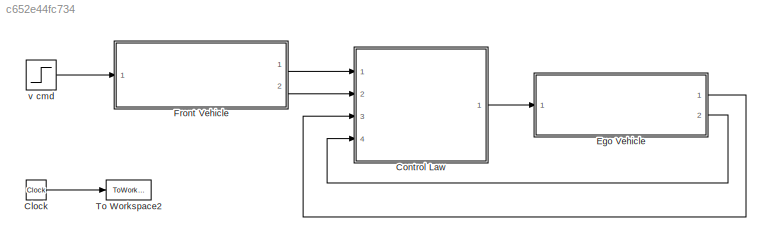
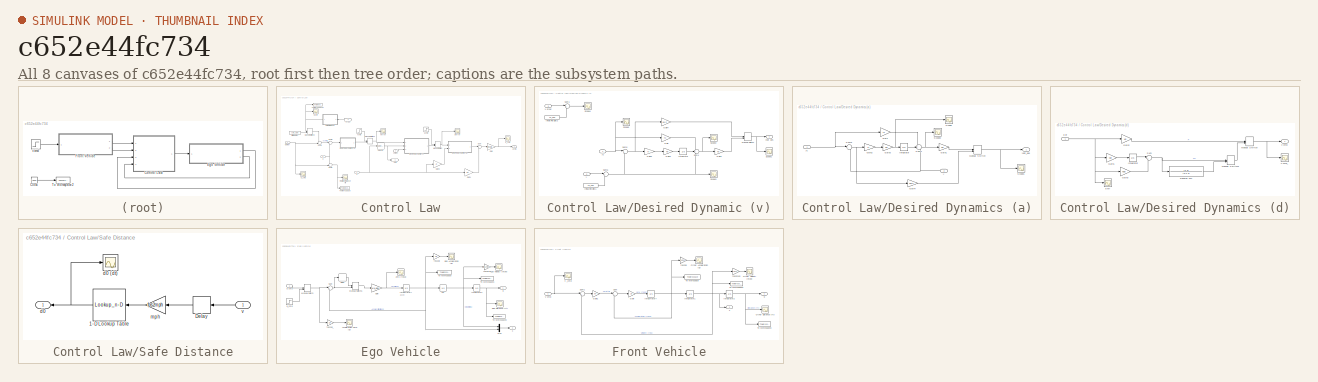
[diagram: thumbnail index - all 8 canvases of the model, root first then tree order]
MODEL slx_c652e44fc734
KIND model
CONFIG AbsTol = auto
CONFIG EnableMultiTasking = off
CONFIG FixedStep = dt
CONFIG MaxStep = auto
CONFIG MinStep = auto
CONFIG RelTol = 1e-3
CONFIG SampleTimeConstraint = Unconstrained
CONFIG Solver = FixedStepAuto
CONFIG SolverName = FixedStepAuto
CONFIG StartTime = 0.0
CONFIG StopTime = 15
BLOCK [Clock] Clock
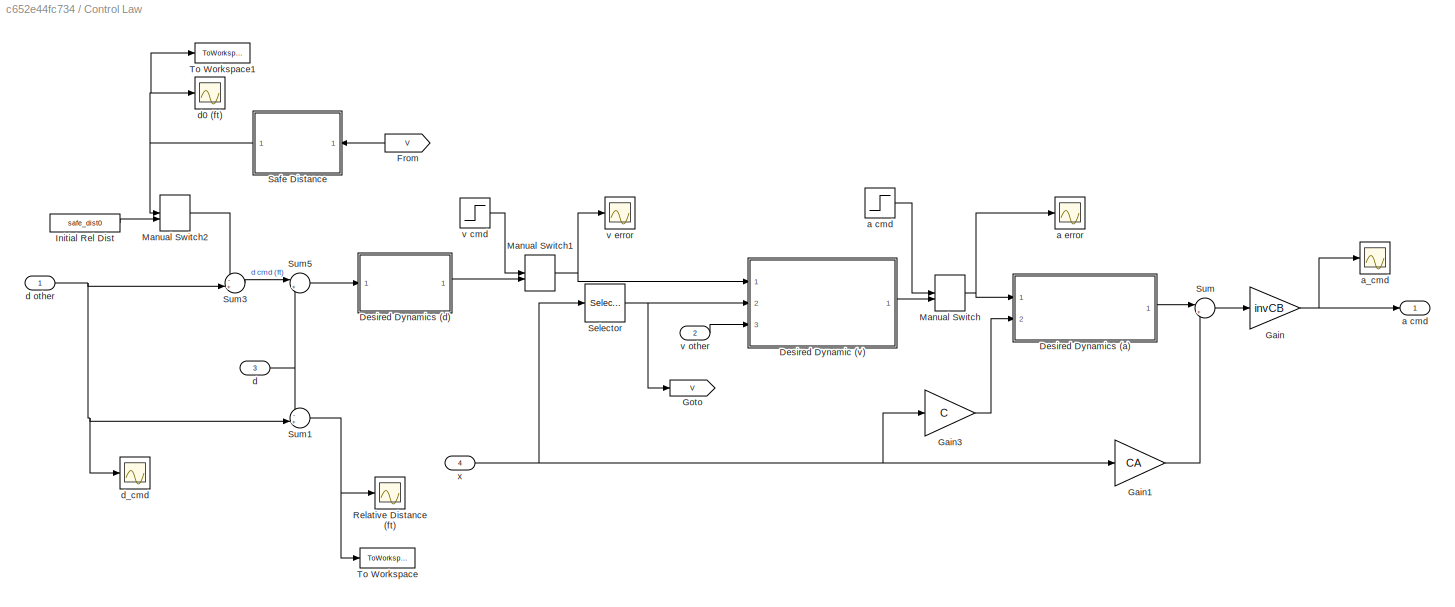
BLOCK [SubSystem] Control Law
  Ports = [4, 1]
  RequestExecContextInheritance = off
BLOCK [SubSystem] Control Law/Desired Dynamic (v)
  Ports = [3, 1]
  RequestExecContextInheritance = off
BLOCK [Gain] Control Law/Desired Dynamic (v)/Gain
  Gain = fc
  OutDataTypeStr = Inherit: Inherit via internal rule
  ParamDataTypeStr = Inherit: Inherit via internal rule
  SaturateOnIntegerOverflow = off
BLOCK [Gain] Control Law/Desired Dynamic (v)/Gain1
  Gain = Kv
  OutDataTypeStr = Inherit: Inherit via internal rule
  ParamDataTypeStr = Inherit: Inherit via internal rule
  SaturateOnIntegerOverflow = off
BLOCK [Gain] Control Law/Desired Dynamic (v)/Gain2
  Gain = fi
  OutDataTypeStr = Inherit: Inherit via internal rule
  ParamDataTypeStr = Inherit: Inherit via internal rule
  SaturateOnIntegerOverflow = off
BLOCK [Gain] Control Law/Desired Dynamic (v)/Gain3
  Gain = Kv
  OutDataTypeStr = Inherit: Inherit via internal rule
  ParamDataTypeStr = Inherit: Inherit via internal rule
  SaturateOnIntegerOverflow = off
BLOCK [Gain] Control Law/Desired Dynamic (v)/Gain4
  Gain = Kv/2
  OutDataTypeStr = Inherit: Inherit via internal rule
  ParamDataTypeStr = Inherit: Inherit via internal rule
  SaturateOnIntegerOverflow = off
BLOCK [Constant] Control Law/Desired Dynamic (v)/Initial Rel Dist1
  Value = v0_ego
BLOCK [Constant] Control Law/Desired Dynamic (v)/Initial Rel Dist2
  Value = v0_ego
BLOCK [Integrator] Control Law/Desired Dynamic (v)/Integrator
  Ports = [1, 1]
BLOCK [ManualSwitch] Control Law/Desired Dynamic (v)/Manual Switch
BLOCK [Scope] Control Law/Desired Dynamic (v)/Scope1
  Floating = off
  NumInputPorts = 1
  Ports = [1]
  ScopeSpecificationString = Simulink.scopes.TimeScopeBlockCfg('CurrentConfiguration', extmgr.ConfigurationSet(extmgr.Configuration('Core','General UI',true),extmgr.Configuration('Core','Source UI',true),extmgr.Configuration('Sources','WiredSimulink',true,'DataLoggingVariableName','ScopeData4'),extmgr.Configuration('Visuals','Time Domain',true,'SerializedDisplays',{struct('MinYLimReal','2.62966','MaxYLimReal','28.1884','YLabe...<+1418ch>
BLOCK [Scope] Control Law/Desired Dynamic (v)/Scope2
  Floating = off
  NumInputPorts = 1
  Ports = [1]
  ScopeSpecificationString = Simulink.scopes.TimeScopeBlockCfg('CurrentConfiguration', extmgr.ConfigurationSet(extmgr.Configuration('Core','General UI',true),extmgr.Configuration('Core','Source UI',true),extmgr.Configuration('Sources','WiredSimulink',true,'DataLoggingVariableName','ScopeData5'),extmgr.Configuration('Visuals','Time Domain',true,'SerializedDisplays',{struct('MinYLimReal','-19.89025','MaxYLimReal','2.21436','YLa...<+1422ch>
BLOCK [Scope] Control Law/Desired Dynamic (v)/Scope3
  Floating = off
  NumInputPorts = 1
  Ports = [1]
  ScopeSpecificationString = Simulink.scopes.TimeScopeBlockCfg('CurrentConfiguration', extmgr.ConfigurationSet(extmgr.Configuration('Core','General UI',true),extmgr.Configuration('Core','Source UI',true),extmgr.Configuration('Sources','WiredSimulink',true,'DataLoggingVariableName','ScopeData6'),extmgr.Configuration('Visuals','Time Domain',true,'SerializedDisplays',{struct('MinYLimReal','-57.87358','MaxYLimReal','6.4304','YLab...<+1413ch>
BLOCK [Scope] Control Law/Desired Dynamic (v)/Scope4
  Floating = off
  NumInputPorts = 1
  Ports = [1]
  ScopeSpecificationString = Simulink.scopes.TimeScopeBlockCfg('CurrentConfiguration', extmgr.ConfigurationSet(extmgr.Configuration('Core','General UI',true),extmgr.Configuration('Core','Source UI',true),extmgr.Configuration('Sources','WiredSimulink',true,'DataLoggingVariableName','ScopeData3'),extmgr.Configuration('Visuals','Time Domain',true,'SerializedDisplays',{struct('MinYLimReal','-74.40634','MaxYLimReal','8.26737','YLa...<+1415ch>
BLOCK [Scope] Control Law/Desired Dynamic (v)/Scope5
  Floating = off
  NumInputPorts = 1
  Ports = [1]
  ScopeSpecificationString = Simulink.scopes.TimeScopeBlockCfg('CurrentConfiguration', extmgr.ConfigurationSet(extmgr.Configuration('Core','General UI',true),extmgr.Configuration('Core','Source UI',true),extmgr.Configuration('Sources','WiredSimulink',true,'DataLoggingVariableName','ScopeData9'),extmgr.Configuration('Visuals','Time Domain',true,'SerializedDisplays',{struct('MinYLimReal','-74.41539','MaxYLimReal','8.26838','YLa...<+1413ch>
BLOCK [Sum] Control Law/Desired Dynamic (v)/Sum1
  IconShape = round
  InputSameDT = off
  Inputs = |+-
  OutDataTypeStr = Inherit: Inherit via internal rule
  Ports = [2, 1]
  SaturateOnIntegerOverflow = off
BLOCK [Sum] Control Law/Desired Dynamic (v)/Sum4
  IconShape = round
  InputSameDT = off
  Inputs = ++-
  OutDataTypeStr = Inherit: Inherit via internal rule
  Ports = [3, 1]
  SaturateOnIntegerOverflow = off
BLOCK [Sum] Control Law/Desired Dynamic (v)/Sum5
  IconShape = round
  InputSameDT = off
  Inputs = |+-
  OutDataTypeStr = Inherit: Inherit via internal rule
  Ports = [2, 1]
  SaturateOnIntegerOverflow = off
BLOCK [Sum] Control Law/Desired Dynamic (v)/Sum6
  IconShape = round
  InputSameDT = off
  Inputs = |+-
  OutDataTypeStr = Inherit: Inherit via internal rule
  Ports = [2, 1]
  SaturateOnIntegerOverflow = off
BLOCK [Inport] Control Law/Desired Dynamic (v)/v other
  IconDisplay = Port number
  Port = 3
BLOCK [Inport] Control Law/Desired Dynamic (v)/y 
  IconDisplay = Port number
  Port = 2
BLOCK [Inport] Control Law/Desired Dynamic (v)/yc
  IconDisplay = Port number
BLOCK [Outport] Control Law/Desired Dynamic (v)/ydot des
  IconDisplay = Port number
BLOCK [SubSystem] Control Law/Desired Dynamics (a)
  Ports = [2, 1]
  RequestExecContextInheritance = off
BLOCK [Gain] Control Law/Desired Dynamics (a)/Gain
  Gain = fc
  OutDataTypeStr = Inherit: Inherit via internal rule
  ParamDataTypeStr = Inherit: Inherit via internal rule
  SaturateOnIntegerOverflow = off
BLOCK [Gain] Control Law/Desired Dynamics (a)/Gain1
  Gain = Ka
  OutDataTypeStr = Inherit: Inherit via internal rule
  ParamDataTypeStr = Inherit: Inherit via internal rule
  SaturateOnIntegerOverflow = off
BLOCK [Gain] Control Law/Desired Dynamics (a)/Gain2
  Gain = fi
  OutDataTypeStr = Inherit: Inherit via internal rule
  ParamDataTypeStr = Inherit: Inherit via internal rule
  SaturateOnIntegerOverflow = off
BLOCK [Gain] Control Law/Desired Dynamics (a)/Gain3
  Gain = Ka
  OutDataTypeStr = Inherit: Inherit via internal rule
  ParamDataTypeStr = Inherit: Inherit via internal rule
  SaturateOnIntegerOverflow = off
BLOCK [Gain] Control Law/Desired Dynamics (a)/Gain4
  Gain = Ka/2
  OutDataTypeStr = Inherit: Inherit via internal rule
  ParamDataTypeStr = Inherit: Inherit via internal rule
  SaturateOnIntegerOverflow = off
BLOCK [Integrator] Control Law/Desired Dynamics (a)/Integrator
  Ports = [1, 1]
BLOCK [ManualSwitch] Control Law/Desired Dynamics (a)/Manual Switch
  CurrentSetting = 0
BLOCK [Scope] Control Law/Desired Dynamics (a)/Scope
  Floating = off
  NumInputPorts = 1
  Ports = [1]
  ScopeSpecificationString = Simulink.scopes.TimeScopeBlockCfg('CurrentConfiguration', extmgr.ConfigurationSet(extmgr.Configuration('Core','General UI',true),extmgr.Configuration('Core','Source UI',true),extmgr.Configuration('Sources','WiredSimulink',true,'DataLoggingVariableName','ScopeData6'),extmgr.Configuration('Visuals','Time Domain',true,'SerializedDisplays',{struct('MinYLimReal','-20.88606','MaxYLimReal','10.48562','YL...<+1425ch>
BLOCK [Scope] Control Law/Desired Dynamics (a)/Scope1
  Floating = off
  NumInputPorts = 1
  Ports = [1]
  ScopeSpecificationString = Simulink.scopes.TimeScopeBlockCfg('CurrentConfiguration', extmgr.ConfigurationSet(extmgr.Configuration('Core','General UI',true),extmgr.Configuration('Core','Source UI',true),extmgr.Configuration('Sources','WiredSimulink',true,'DataLoggingVariableName','ScopeData8'),extmgr.Configuration('Visuals','Time Domain',true,'SerializedDisplays',{struct('MinYLimReal','-41.77213','MaxYLimReal','20.97124','YL...<+1433ch>
BLOCK [Scope] Control Law/Desired Dynamics (a)/Scope2
  Floating = off
  NumInputPorts = 1
  Ports = [1]
  ScopeSpecificationString = Simulink.scopes.TimeScopeBlockCfg('CurrentConfiguration', extmgr.ConfigurationSet(extmgr.Configuration('Core','General UI',true),extmgr.Configuration('Core','Source UI',true),extmgr.Configuration('Sources','WiredSimulink',true,'DataLoggingVariableName','ScopeData9'),extmgr.Configuration('Visuals','Time Domain',true,'SerializedDisplays',{struct('MinYLimReal','-5.22152','MaxYLimReal','2.62141','YLab...<+1418ch>
BLOCK [Sum] Control Law/Desired Dynamics (a)/Sum4
  IconShape = round
  InputSameDT = off
  Inputs = ++-
  OutDataTypeStr = Inherit: Inherit via internal rule
  Ports = [3, 1]
  SaturateOnIntegerOverflow = off
BLOCK [Sum] Control Law/Desired Dynamics (a)/Sum5
  IconShape = round
  InputSameDT = off
  Inputs = |+-
  OutDataTypeStr = Inherit: Inherit via internal rule
  Ports = [2, 1]
  SaturateOnIntegerOverflow = off
BLOCK [Inport] Control Law/Desired Dynamics (a)/y
  IconDisplay = Port number
  Port = 2
BLOCK [Inport] Control Law/Desired Dynamics (a)/yc
  IconDisplay = Port number
BLOCK [Outport] Control Law/Desired Dynamics (a)/ydot_des
  IconDisplay = Port number
BLOCK [SubSystem] Control Law/Desired Dynamics (d)
  Ports = [1, 1]
  RequestExecContextInheritance = off
BLOCK [Gain] Control Law/Desired Dynamics (d)/Gain1
  Gain = Kdi
  OutDataTypeStr = Inherit: Inherit via internal rule
  ParamDataTypeStr = Inherit: Inherit via internal rule
  SaturateOnIntegerOverflow = off
BLOCK [Gain] Control Law/Desired Dynamics (d)/Gain2
  Gain = Kd
  OutDataTypeStr = Inherit: Inherit via internal rule
  ParamDataTypeStr = Inherit: Inherit via internal rule
  SaturateOnIntegerOverflow = off
BLOCK [Gain] Control Law/Desired Dynamics (d)/Gain3
  Gain = Kdp
  OutDataTypeStr = Inherit: Inherit via internal rule
  ParamDataTypeStr = Inherit: Inherit via internal rule
  SaturateOnIntegerOverflow = off
BLOCK [Integrator] Control Law/Desired Dynamics (d)/Integrator
  Ports = [1, 1]
BLOCK [ManualSwitch] Control Law/Desired Dynamics (d)/Manual Switch
  CurrentSetting = 0
BLOCK [ManualSwitch] Control Law/Desired Dynamics (d)/Manual Switch1
  CurrentSetting = 0
BLOCK [Sum] Control Law/Desired Dynamics (d)/Sum
  IconShape = round
  InputSameDT = off
  Inputs = |++
  OutDataTypeStr = Inherit: Inherit via internal rule
  Ports = [2, 1]
  SaturateOnIntegerOverflow = off
BLOCK [TransferFcn] Control Law/Desired Dynamics (d)/Transfer Fcn
  Denominator = [1/4 1]
  Numerator = [1 1]
BLOCK [Inport] Control Law/Desired Dynamics (d)/d er
  IconDisplay = Port number
BLOCK [Scope] Control Law/Desired Dynamics (d)/d err 
  Floating = off
  NumInputPorts = 1
  Ports = [1]
  ScopeSpecificationString = Simulink.scopes.TimeScopeBlockCfg('CurrentConfiguration', extmgr.ConfigurationSet(extmgr.Configuration('Core','General UI',true),extmgr.Configuration('Core','Source UI',true),extmgr.Configuration('Sources','WiredSimulink',true,'DataLoggingVariableName','ScopeData8'),extmgr.Configuration('Visuals','Time Domain',true,'SerializedDisplays',{struct('MinYLimReal','-1289.52365','MaxYLimReal','143.28041',...<+1431ch>
BLOCK [Outport] Control Law/Desired Dynamics (d)/v cmd
  IconDisplay = Port number
BLOCK [Scope] Control Law/Desired Dynamics (d)/v cmd_
  Floating = off
  NumInputPorts = 1
  Ports = [1]
  ScopeSpecificationString = Simulink.scopes.TimeScopeBlockCfg('CurrentConfiguration', extmgr.ConfigurationSet(extmgr.Configuration('Core','General UI',true),extmgr.Configuration('Core','Source UI',true),extmgr.Configuration('Sources','WiredSimulink',true,'DataLoggingVariableName','ScopeData7'),extmgr.Configuration('Visuals','Time Domain',true,'SerializedDisplays',{struct('MinYLimReal','-60.66699','MaxYLimReal','6.74078','YLa...<+1424ch>
BLOCK [From] Control Law/From
  GotoTag = V
BLOCK [Gain] Control Law/Gain
  Gain = invCB
  Multiplication = Matrix(K*u)
  OutDataTypeStr = Inherit: Inherit via internal rule
  ParamDataTypeStr = Inherit: Inherit via internal rule
  SaturateOnIntegerOverflow = off
BLOCK [Gain] Control Law/Gain1
  Gain = CA
  Multiplication = Matrix(K*u)
  OutDataTypeStr = Inherit: Inherit via internal rule
  ParamDataTypeStr = Inherit: Inherit via internal rule
  SaturateOnIntegerOverflow = off
BLOCK [Gain] Control Law/Gain3
  Gain = C
  Multiplication = Matrix(K*u)
  OutDataTypeStr = Inherit: Inherit via internal rule
  ParamDataTypeStr = Inherit: Inherit via internal rule
  SaturateOnIntegerOverflow = off
BLOCK [Goto] Control Law/Goto
  GotoTag = V
BLOCK [Constant] Control Law/Initial Rel Dist
  Value = safe_dist0
BLOCK [ManualSwitch] Control Law/Manual Switch
  CurrentSetting = 0
BLOCK [ManualSwitch] Control Law/Manual Switch1
  CurrentSetting = 0
BLOCK [ManualSwitch] Control Law/Manual Switch2
BLOCK [Scope] Control Law/Relative Distance (ft)
  Floating = off
  NumInputPorts = 1
  Ports = [1]
  ScopeSpecificationString = Simulink.scopes.TimeScopeBlockCfg('CurrentConfiguration', extmgr.ConfigurationSet(extmgr.Configuration('Core','General UI',true),extmgr.Configuration('Core','Source UI',true),extmgr.Configuration('Sources','WiredSimulink',true,'DataLoggingVariableName','ScopeData1'),extmgr.Configuration('Visuals','Time Domain',true,'SerializedDisplays',{struct('MinYLimReal','13.84466','MaxYLimReal','67.35059','YLa...<+1443ch>
BLOCK [SubSystem] Control Law/Safe Distance
  Ports = [1, 1]
  RequestExecContextInheritance = off
BLOCK [Lookup_n-D] Control Law/Safe Distance/1-D Lookup Table
  BreakpointsForDimension1 = v_in
  InternalRulePriority = Speed
  NumberOfTableDimensions = 1
  Ports = [1, 1]
  RndMeth = Simplest
  Table = safe_dist_out
BLOCK [Delay] Control Law/Safe Distance/Delay
  DelayLength = 1
  InitialCondition = v0_ego
  InputPortMap = u0
  Ports = [1, 1]
BLOCK [Outport] Control Law/Safe Distance/d0
  IconDisplay = Port number
BLOCK [Scope] Control Law/Safe Distance/d0 (dt)
  Floating = off
  NumInputPorts = 1
  Ports = [1]
  ScopeSpecificationString = Simulink.scopes.TimeScopeBlockCfg('CurrentConfiguration', extmgr.ConfigurationSet(extmgr.Configuration('Core','General UI',true),extmgr.Configuration('Core','Source UI',true),extmgr.Configuration('Sources','WiredSimulink',true,'DataLoggingVariableName','ScopeData2'),extmgr.Configuration('Visuals','Time Domain',true,'SerializedDisplays',{struct('MinYLimReal','14.73637','MaxYLimReal','67.25151','YLa...<+1436ch>
BLOCK [Gain] Control Law/Safe Distance/mph
  Gain = fps2mph
  OutDataTypeStr = Inherit: Inherit via internal rule
  ParamDataTypeStr = Inherit: Inherit via internal rule
  SaturateOnIntegerOverflow = off
BLOCK [Inport] Control Law/Safe Distance/v
  IconDisplay = Port number
BLOCK [Selector] Control Law/Selector
  IndexOptions = Index vector (dialog)
  Indices = 1
  InputPortWidth = 2
  OutputSizes = 1
  Ports = [1, 1]
BLOCK [Sum] Control Law/Sum
  IconShape = round
  InputSameDT = off
  Inputs = |+-
  OutDataTypeStr = Inherit: Inherit via internal rule
  Ports = [2, 1]
  SaturateOnIntegerOverflow = off
BLOCK [Sum] Control Law/Sum1
  IconShape = round
  InputSameDT = off
  Inputs = -+|
  OutDataTypeStr = Inherit: Inherit via internal rule
  Ports = [2, 1]
  SaturateOnIntegerOverflow = off
BLOCK [Sum] Control Law/Sum3
  IconShape = round
  InputSameDT = off
  Inputs = -+|
  OutDataTypeStr = Inherit: Inherit via internal rule
  Ports = [2, 1]
  SaturateOnIntegerOverflow = off
BLOCK [Sum] Control Law/Sum5
  IconShape = round
  InputSameDT = off
  Inputs = |+-
  OutDataTypeStr = Inherit: Inherit via internal rule
  Ports = [2, 1]
  SaturateOnIntegerOverflow = off
BLOCK [ToWorkspace] Control Law/To Workspace
  FixptAsFi = on
  MaxDataPoints = inf
  Ports = [1]
  SampleTime = -1
  Save2DSignal = 3-D array (concatenate along third dimension)
  VariableName = rel_dist
BLOCK [ToWorkspace] Control Law/To Workspace1
  FixptAsFi = on
  MaxDataPoints = inf
  Ports = [1]
  SampleTime = -1
  Save2DSignal = 3-D array (concatenate along third dimension)
  VariableName = safe_dist
BLOCK [Outport] Control Law/a cmd
  IconDisplay = Port number
BLOCK [Step] Control Law/a cmd 
  After = 0.6*32.2
  SampleTime = 0
BLOCK [Scope] Control Law/a error
  Floating = off
  NumInputPorts = 1
  Ports = [1]
  ScopeSpecificationString = Simulink.scopes.TimeScopeBlockCfg('CurrentConfiguration', extmgr.ConfigurationSet(extmgr.Configuration('Core','General UI',true),extmgr.Configuration('Core','Source UI',true),extmgr.Configuration('Sources','WiredSimulink',true,'DataLoggingVariableName','ScopeData4'),extmgr.Configuration('Visuals','Time Domain',true,'SerializedDisplays',{struct('MinYLimReal','-31.7722','MaxYLimReal','3.53721','YLab...<+1402ch>
BLOCK [Scope] Control Law/a_cmd
  Floating = off
  NumInputPorts = 1
  Ports = [1]
  ScopeSpecificationString = Simulink.scopes.TimeScopeBlockCfg('CurrentConfiguration', extmgr.ConfigurationSet(extmgr.Configuration('Core','General UI',true),extmgr.Configuration('Core','Source UI',true),extmgr.Configuration('Sources','WiredSimulink',true,'DataLoggingVariableName','ScopeData2'),extmgr.Configuration('Visuals','Time Domain',true,'SerializedDisplays',{struct('MinYLimReal','-1.01669','MaxYLimReal','9.14845','YLab...<+1412ch>
BLOCK [Inport] Control Law/d
  IconDisplay = Port number
  Port = 3
BLOCK [Inport] Control Law/d other
  IconDisplay = Port number
BLOCK [Scope] Control Law/d0 (ft)
  Floating = off
  NumInputPorts = 1
  Ports = [1]
  ScopeSpecificationString = Simulink.scopes.TimeScopeBlockCfg('CurrentConfiguration', extmgr.ConfigurationSet(extmgr.Configuration('Core','General UI',true),extmgr.Configuration('Core','Source UI',true),extmgr.Configuration('Sources','WiredSimulink',true,'DataLoggingVariableName','ScopeData1'),extmgr.Configuration('Visuals','Time Domain',true,'SerializedDisplays',{struct('MinYLimReal','14.73637','MaxYLimReal','67.25151','YLa...<+1433ch>
BLOCK [Scope] Control Law/d_cmd
  Floating = off
  NumInputPorts = 1
  Ports = [1]
  ScopeSpecificationString = Simulink.scopes.TimeScopeBlockCfg('CurrentConfiguration', extmgr.ConfigurationSet(extmgr.Configuration('Core','General UI',true),extmgr.Configuration('Core','Source UI',true),extmgr.Configuration('Sources','WiredSimulink',true,'DataLoggingVariableName','ScopeData14'),extmgr.Configuration('Visuals','Time Domain',true,'SerializedDisplays',{struct('MinYLimReal','16.98415','MaxYLimReal','467.14263','Y...<+1407ch>
BLOCK [Step] Control Law/v cmd
  After = 10*mph2fps
  SampleTime = 0
BLOCK [Scope] Control Law/v error
  Floating = off
  NumInputPorts = 1
  Ports = [1]
  ScopeSpecificationString = Simulink.scopes.TimeScopeBlockCfg('CurrentConfiguration', extmgr.ConfigurationSet(extmgr.Configuration('Core','General UI',true),extmgr.Configuration('Core','Source UI',true),extmgr.Configuration('Sources','WiredSimulink',true,'DataLoggingVariableName','ScopeData3'),extmgr.Configuration('Visuals','Time Domain',true,'SerializedDisplays',{struct('MinYLimReal','-115.79889','MaxYLimReal','12.86654','Y...<+1415ch>
BLOCK [Inport] Control Law/v other
  IconDisplay = Port number
  Port = 2
BLOCK [Inport] Control Law/x
  IconDisplay = Port number
  Port = 4
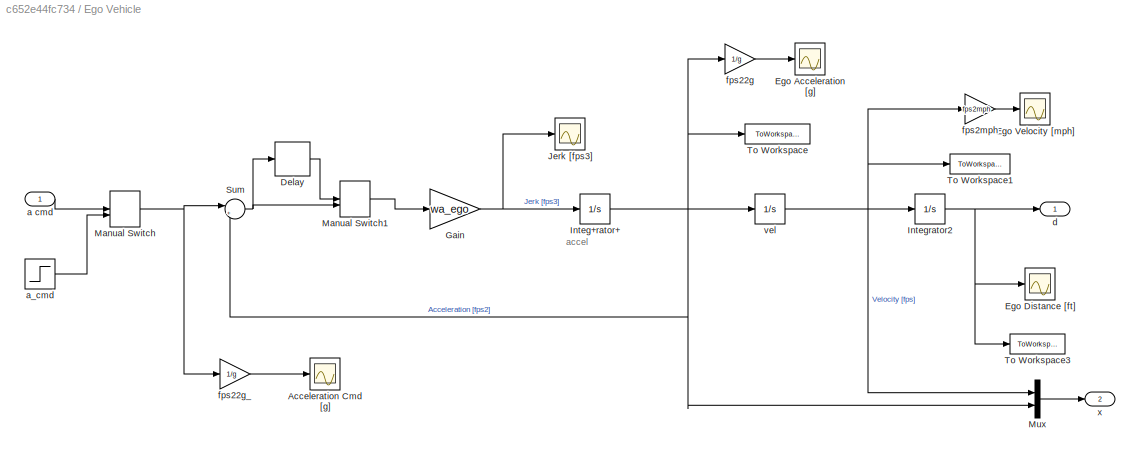
BLOCK [SubSystem] Ego Vehicle
  Ports = [1, 2]
  RequestExecContextInheritance = off
BLOCK [Scope] Ego Vehicle/Acceleration Cmd [g]
  Floating = off
  NumInputPorts = 1
  Ports = [1]
  ScopeSpecificationString = Simulink.scopes.TimeScopeBlockCfg('CurrentConfiguration', extmgr.ConfigurationSet(extmgr.Configuration('Core','General UI',true),extmgr.Configuration('Core','Source UI',true),extmgr.Configuration('Sources','WiredSimulink',true,'DataLoggingVariableName','ScopeData1'),extmgr.Configuration('Visuals','Time Domain',true,'SerializedDisplays',{struct('MinYLimReal','-0.02084','MaxYLimReal','0.1876','YLabe...<+1391ch>
BLOCK [Delay] Ego Vehicle/Delay
  DelayLength = 10
  InputPortMap = u0
  Ports = [1, 1]
BLOCK [Scope] Ego Vehicle/Ego Acceleration [g]
  Floating = off
  NumInputPorts = 1
  Ports = [1]
  ScopeSpecificationString = Simulink.scopes.TimeScopeBlockCfg('CurrentConfiguration', extmgr.ConfigurationSet(extmgr.Configuration('Core','General UI',true),extmgr.Configuration('Core','Source UI',true),extmgr.Configuration('Sources','WiredSimulink',true,'DataLoggingVariableName','ScopeData2'),extmgr.Configuration('Visuals','Time Domain',true,'SerializedDisplays',{struct('MinYLimReal','-1.02281','MaxYLimReal','0.11386','YLab...<+1440ch>
BLOCK [Scope] Ego Vehicle/Ego Distance [ft]
  Floating = off
  NumInputPorts = 1
  Ports = [1]
  ScopeSpecificationString = Simulink.scopes.TimeScopeBlockCfg('CurrentConfiguration', extmgr.ConfigurationSet(extmgr.Configuration('Core','General UI',true),extmgr.Configuration('Core','Source UI',true),extmgr.Configuration('Sources','WiredSimulink',true),extmgr.Configuration('Visuals','Time Domain',true,'SerializedDisplays',{struct('MinYLimReal','-66.15','MaxYLimReal','595.35','YLabelReal','','MinYLimMag','0.00000','MaxYLim...<+1353ch>
BLOCK [Scope] Ego Vehicle/Ego Velocity [mph]
  Floating = off
  NumInputPorts = 1
  Ports = [1]
  ScopeSpecificationString = Simulink.scopes.TimeScopeBlockCfg('CurrentConfiguration', extmgr.ConfigurationSet(extmgr.Configuration('Core','General UI',true),extmgr.Configuration('Core','Source UI',true),extmgr.Configuration('Sources','WiredSimulink',true,'DataLoggingVariableName','ScopeData1'),extmgr.Configuration('Visuals','Time Domain',true,'SerializedDisplays',{struct('MinYLimReal','-8.77272','MaxYLimReal','78.75252','YLa...<+1445ch>
BLOCK [Gain] Ego Vehicle/Gain
  Gain = wa_ego
  OutDataTypeStr = Inherit: Inherit via internal rule
  ParamDataTypeStr = Inherit: Inherit via internal rule
  SaturateOnIntegerOverflow = off
BLOCK [Integrator] Ego Vehicle/Integ+rator+
  LimitOutput = on
  LowerSaturationLimit = min_accel
  Ports = [1, 1]
  UpperSaturationLimit = max_accel
BLOCK [Integrator] Ego Vehicle/Integrator2
  InitialCondition = d0_ego
  Ports = [1, 1]
BLOCK [Scope] Ego Vehicle/Jerk [fps3]
  Floating = off
  NumInputPorts = 1
  Ports = [1]
  ScopeSpecificationString = Simulink.scopes.TimeScopeBlockCfg('CurrentConfiguration', extmgr.ConfigurationSet(extmgr.Configuration('Core','General UI',true),extmgr.Configuration('Core','Source UI',true),extmgr.Configuration('Sources','WiredSimulink',true,'DataLoggingVariableName','ScopeData7'),extmgr.Configuration('Visuals','Time Domain',true,'SerializedDisplays',{struct('MinYLimReal','-16.37419','MaxYLimReal','16.09416','YL...<+1451ch>
BLOCK [ManualSwitch] Ego Vehicle/Manual Switch
BLOCK [ManualSwitch] Ego Vehicle/Manual Switch1
  CurrentSetting = 0
BLOCK [Mux] Ego Vehicle/Mux
  DisplayOption = bar
  Inputs = 2
  Ports = [2, 1]
BLOCK [Sum] Ego Vehicle/Sum
  IconShape = round
  InputSameDT = off
  Inputs = |+-
  OutDataTypeStr = Inherit: Inherit via internal rule
  Ports = [2, 1]
  SaturateOnIntegerOverflow = off
BLOCK [ToWorkspace] Ego Vehicle/To Workspace
  FixptAsFi = on
  MaxDataPoints = inf
  Ports = [1]
  SampleTime = -1
  Save2DSignal = 3-D array (concatenate along third dimension)
  VariableName = accel_ego
BLOCK [ToWorkspace] Ego Vehicle/To Workspace1
  FixptAsFi = on
  MaxDataPoints = inf
  Ports = [1]
  SampleTime = -1
  Save2DSignal = 3-D array (concatenate along third dimension)
  VariableName = vel_ego
BLOCK [ToWorkspace] Ego Vehicle/To Workspace3
  FixptAsFi = on
  MaxDataPoints = inf
  Ports = [1]
  SampleTime = -1
  Save2DSignal = 3-D array (concatenate along third dimension)
  VariableName = dist_ego
BLOCK [Inport] Ego Vehicle/a cmd
  IconDisplay = Port number
BLOCK [Step] Ego Vehicle/a_cmd
  SampleTime = 0
BLOCK [Outport] Ego Vehicle/d
  IconDisplay = Port number
BLOCK [Gain] Ego Vehicle/fps22g
  Gain = 1/g
  OutDataTypeStr = Inherit: Inherit via internal rule
  ParamDataTypeStr = Inherit: Inherit via internal rule
  SaturateOnIntegerOverflow = off
BLOCK [Gain] Ego Vehicle/fps22g_
  Gain = 1/g
  OutDataTypeStr = Inherit: Inherit via internal rule
  ParamDataTypeStr = Inherit: Inherit via internal rule
  SaturateOnIntegerOverflow = off
BLOCK [Gain] Ego Vehicle/fps2mph
  Gain = fps2mph
  OutDataTypeStr = Inherit: Inherit via internal rule
  ParamDataTypeStr = Inherit: Inherit via internal rule
  SaturateOnIntegerOverflow = off
BLOCK [Integrator] Ego Vehicle/vel
  InitialCondition = v0_ego
  Ports = [1, 1]
BLOCK [Outport] Ego Vehicle/x
  IconDisplay = Port number
  Port = 2
BLOCK [SubSystem] Front Vehicle
  Ports = [1, 2]
  RequestExecContextInheritance = off
BLOCK [Gain] Front Vehicle/Gain
  Gain = 1.6
  OutDataTypeStr = Inherit: Inherit via internal rule
  ParamDataTypeStr = Inherit: Inherit via internal rule
  SaturateOnIntegerOverflow = off
BLOCK [Gain] Front Vehicle/Gain1
  Gain = 0.4
  OutDataTypeStr = Inherit: Inherit via internal rule
  ParamDataTypeStr = Inherit: Inherit via internal rule
  SaturateOnIntegerOverflow = off
BLOCK [Integrator] Front Vehicle/Integ+rator+
  LimitOutput = on
  LowerSaturationLimit = min_accel
  Ports = [1, 1]
  UpperSaturationLimit = max_accel
BLOCK [Integrator] Front Vehicle/Integrator1
  InitialCondition = v0_other
  Ports = [1, 1]
BLOCK [Integrator] Front Vehicle/Integrator2
  InitialCondition = d0_other
  Ports = [1, 1]
BLOCK [Scope] Front Vehicle/Other Acceleration [g]
  Floating = off
  NumInputPorts = 1
  Ports = [1]
  ScopeSpecificationString = Simulink.scopes.TimeScopeBlockCfg('CurrentConfiguration', extmgr.ConfigurationSet(extmgr.Configuration('Core','General UI',true),extmgr.Configuration('Core','Source UI',true),extmgr.Configuration('Sources','WiredSimulink',true,'DataLoggingVariableName','ScopeData2'),extmgr.Configuration('Visuals','Time Domain',true,'SerializedDisplays',{struct('MinYLimReal','-0.83133','MaxYLimReal','0.09237','YLab...<+1440ch>
BLOCK [Scope] Front Vehicle/Other Distance [ft]
  Floating = off
  NumInputPorts = 1
  Ports = [1]
  ScopeSpecificationString = Simulink.scopes.TimeScopeBlockCfg('CurrentConfiguration', extmgr.ConfigurationSet(extmgr.Configuration('Core','General UI',true),extmgr.Configuration('Core','Source UI',true),extmgr.Configuration('Sources','WiredSimulink',true),extmgr.Configuration('Visuals','Time Domain',true,'SerializedDisplays',{struct('MinYLimReal','-7.9875','MaxYLimReal','671.8875','YLabelReal','','MinYLimMag','0.00000','MaxY...<+1365ch>
BLOCK [Scope] Front Vehicle/Other Velocity [mph]
  Floating = off
  NumInputPorts = 1
  Ports = [1]
  ScopeSpecificationString = Simulink.scopes.TimeScopeBlockCfg('CurrentConfiguration', extmgr.ConfigurationSet(extmgr.Configuration('Core','General UI',true),extmgr.Configuration('Core','Source UI',true),extmgr.Configuration('Sources','WiredSimulink',true,'DataLoggingVariableName','ScopeData1'),extmgr.Configuration('Visuals','Time Domain',true,'SerializedDisplays',{struct('MinYLimReal','-6.875','MaxYLimReal','61.875','YLabelR...<+1432ch>
BLOCK [Sum] Front Vehicle/Sum
  IconShape = round
  InputSameDT = off
  Inputs = |+-
  OutDataTypeStr = Inherit: Inherit via internal rule
  Ports = [2, 1]
  SaturateOnIntegerOverflow = off
BLOCK [Sum] Front Vehicle/Sum1
  IconShape = round
  InputSameDT = off
  Inputs = |+-
  OutDataTypeStr = Inherit: Inherit via internal rule
  Ports = [2, 1]
  SaturateOnIntegerOverflow = off
BLOCK [ToWorkspace] Front Vehicle/To Workspace
  FixptAsFi = on
  MaxDataPoints = inf
  Ports = [1]
  SampleTime = -1
  Save2DSignal = 3-D array (concatenate along third dimension)
  VariableName = accel_other
BLOCK [ToWorkspace] Front Vehicle/To Workspace1
  FixptAsFi = on
  MaxDataPoints = inf
  Ports = [1]
  SampleTime = -1
  Save2DSignal = 3-D array (concatenate along third dimension)
  VariableName = vel_other
BLOCK [ToWorkspace] Front Vehicle/To Workspace3
  FixptAsFi = on
  MaxDataPoints = inf
  Ports = [1]
  SampleTime = -1
  Save2DSignal = 3-D array (concatenate along third dimension)
  VariableName = dist_other
BLOCK [Outport] Front Vehicle/d
  IconDisplay = Port number
BLOCK [Gain] Front Vehicle/fps22g
  Gain = 1/32.2
  OutDataTypeStr = Inherit: Inherit via internal rule
  ParamDataTypeStr = Inherit: Inherit via internal rule
  SaturateOnIntegerOverflow = off
BLOCK [Gain] Front Vehicle/fps2mph
  Gain = 1/1.47
  OutDataTypeStr = Inherit: Inherit via internal rule
  ParamDataTypeStr = Inherit: Inherit via internal rule
  SaturateOnIntegerOverflow = off
BLOCK [Outport] Front Vehicle/v
  IconDisplay = Port number
  Port = 2
BLOCK [Scope] Front Vehicle/v _cmd
  Floating = off
  NumInputPorts = 1
  Ports = [1]
  ScopeSpecificationString = Simulink.scopes.TimeScopeBlockCfg('CurrentConfiguration', extmgr.ConfigurationSet(extmgr.Configuration('Core','General UI',true),extmgr.Configuration('Core','Source UI',true),extmgr.Configuration('Sources','WiredSimulink',true,'DataLoggingVariableName','ScopeData2'),extmgr.Configuration('Visuals','Time Domain',true,'SerializedDisplays',{struct('MinYLimReal','-12.8625','MaxYLimReal','115.7625','YLa...<+1398ch>
BLOCK [Inport] Front Vehicle/v cmd
  IconDisplay = Port number
BLOCK [ToWorkspace] To Workspace2
  FixptAsFi = on
  MaxDataPoints = inf
  Ports = [1]
  SampleTime = -1
  Save2DSignal = 3-D array (concatenate along third dimension)
  VariableName = time
BLOCK [Step] v cmd 
  After = v_other
  Before = v0_other
  SampleTime = 0
ANNOTATION Ego Vehicle: accel
LINE Clock:1 -> To Workspace2:1
LINE Control Law/Desired Dynamic (v)/Gain1:1 -> Control Law/Desired Dynamic (v)/Manual Switch:2
LINE Control Law/Desired Dynamic (v)/Gain2:1 -> Control Law/Desired Dynamic (v)/Gain3:1
LINE Control Law/Desired Dynamic (v)/Gain3:1 -> Control Law/Desired Dynamic (v)/Integrator:1
LINE Control Law/Desired Dynamic (v)/Gain4:1 -> Control Law/Desired Dynamic (v)/Manual Switch:1
LINE Control Law/Desired Dynamic (v)/Gain:1 -> Control Law/Desired Dynamic (v)/Sum4:1
LINE Control Law/Desired Dynamic (v)/Initial Rel Dist1:1 -> Control Law/Desired Dynamic (v)/Sum6:2
LINE Control Law/Desired Dynamic (v)/Initial Rel Dist2:1 -> Control Law/Desired Dynamic (v)/Sum1:2
LINE Control Law/Desired Dynamic (v)/Integrator:1 -> Control Law/Desired Dynamic (v)/Sum4:2
NET Control Law/Desired Dynamic (v)/Manual Switch:1 -> Control Law/Desired Dynamic (v)/Scope1:1, Control Law/Desired Dynamic (v)/ydot des:1
LINE Control Law/Desired Dynamic (v)/Sum1:1 -> Control Law/Desired Dynamic (v)/Scope4:1
NET Control Law/Desired Dynamic (v)/Sum4:1 -> Control Law/Desired Dynamic (v)/Gain1:1, Control Law/Desired Dynamic (v)/Scope2:1
NET Control Law/Desired Dynamic (v)/Sum5:1 -> Control Law/Desired Dynamic (v)/Gain2:1, Control Law/Desired Dynamic (v)/Gain4:1
NET Control Law/Desired Dynamic (v)/Sum6:1 -> Control Law/Desired Dynamic (v)/Scope3:1, Control Law/Desired Dynamic (v)/Sum4:3, Control Law/Desired Dynamic (v)/Sum5:2
LINE Control Law/Desired Dynamic (v)/v other:1 -> Control Law/Desired Dynamic (v)/Sum1:1
LINE Control Law/Desired Dynamic (v)/y :1 -> Control Law/Desired Dynamic (v)/Sum6:1
NET Control Law/Desired Dynamic (v)/yc:1 -> Control Law/Desired Dynamic (v)/Gain:1, Control Law/Desired Dynamic (v)/Scope5:1, Control Law/Desired Dynamic (v)/Sum5:1
LINE Control Law/Desired Dynamic (v):1 -> Control Law/Manual Switch:2
LINE Control Law/Desired Dynamics (a)/Gain1:1 -> Control Law/Desired Dynamics (a)/Manual Switch:1
LINE Control Law/Desired Dynamics (a)/Gain2:1 -> Control Law/Desired Dynamics (a)/Gain3:1
NET Control Law/Desired Dynamics (a)/Gain3:1 -> Control Law/Desired Dynamics (a)/Integrator:1, Control Law/Desired Dynamics (a)/Scope:1
LINE Control Law/Desired Dynamics (a)/Gain4:1 -> Control Law/Desired Dynamics (a)/Manual Switch:2
LINE Control Law/Desired Dynamics (a)/Gain:1 -> Control Law/Desired Dynamics (a)/Sum4:1
LINE Control Law/Desired Dynamics (a)/Integrator:1 -> Control Law/Desired Dynamics (a)/Sum4:2
NET Control Law/Desired Dynamics (a)/Manual Switch:1 -> Control Law/Desired Dynamics (a)/Scope1:1, Control Law/Desired Dynamics (a)/ydot_des:1
NET Control Law/Desired Dynamics (a)/Sum4:1 -> Control Law/Desired Dynamics (a)/Gain1:1, Control Law/Desired Dynamics (a)/Scope2:1
NET Control Law/Desired Dynamics (a)/Sum5:1 -> Control Law/Desired Dynamics (a)/Gain2:1, Control Law/Desired Dynamics (a)/Gain4:1
NET Control Law/Desired Dynamics (a)/y:1 -> Control Law/Desired Dynamics (a)/Sum4:3, Control Law/Desired Dynamics (a)/Sum5:2
NET Control Law/Desired Dynamics (a)/yc:1 -> Control Law/Desired Dynamics (a)/Gain:1, Control Law/Desired Dynamics (a)/Sum5:1
LINE Control Law/Desired Dynamics (a):1 -> Control Law/Sum:1
LINE Control Law/Desired Dynamics (d)/Gain1:1 -> Control Law/Desired Dynamics (d)/Integrator:1
LINE Control Law/Desired Dynamics (d)/Gain2:1 -> Control Law/Desired Dynamics (d)/Manual Switch:1
LINE Control Law/Desired Dynamics (d)/Gain3:1 -> Control Law/Desired Dynamics (d)/Sum:2
LINE Control Law/Desired Dynamics (d)/Integrator:1 -> Control Law/Desired Dynamics (d)/Sum:1
LINE Control Law/Desired Dynamics (d)/Manual Switch1:1 -> Control Law/Desired Dynamics (d)/Manual Switch:2
NET Control Law/Desired Dynamics (d)/Manual Switch:1 -> Control Law/Desired Dynamics (d)/v cmd:1, Control Law/Desired Dynamics (d)/v cmd_:1
NET Control Law/Desired Dynamics (d)/Sum:1 -> Control Law/Desired Dynamics (d)/Manual Switch1:1, Control Law/Desired Dynamics (d)/Transfer Fcn:1
LINE Control Law/Desired Dynamics (d)/Transfer Fcn:1 -> Control Law/Desired Dynamics (d)/Manual Switch1:2
NET Control Law/Desired Dynamics (d)/d er:1 -> Control Law/Desired Dynamics (d)/Gain1:1, Control Law/Desired Dynamics (d)/Gain2:1, Control Law/Desired Dynamics (d)/Gain3:1, Control Law/Desired Dynamics (d)/d err :1
LINE Control Law/Desired Dynamics (d):1 -> Control Law/Manual Switch1:2
LINE Control Law/From:1 -> Control Law/Safe Distance:1
LINE Control Law/Gain1:1 -> Control Law/Sum:2
LINE Control Law/Gain3:1 -> Control Law/Desired Dynamics (a):2
NET Control Law/Gain:1 -> Control Law/a cmd:1, Control Law/a_cmd:1
LINE Control Law/Initial Rel Dist:1 -> Control Law/Manual Switch2:2
NET Control Law/Manual Switch1:1 -> Control Law/Desired Dynamic (v):1, Control Law/v error:1
LINE Control Law/Manual Switch2:1 -> Control Law/Sum3:1
NET Control Law/Manual Switch:1 -> Control Law/Desired Dynamics (a):1, Control Law/a error:1
NET Control Law/Safe Distance/1-D Lookup Table:1 -> Control Law/Safe Distance/d0 (dt):1, Control Law/Safe Distance/d0:1
LINE Control Law/Safe Distance/Delay:1 -> Control Law/Safe Distance/mph:1
LINE Control Law/Safe Distance/mph:1 -> Control Law/Safe Distance/1-D Lookup Table:1
LINE Control Law/Safe Distance/v:1 -> Control Law/Safe Distance/Delay:1
NET Control Law/Safe Distance:1 -> Control Law/Manual Switch2:1, Control Law/To Workspace1:1, Control Law/d0 (ft):1
NET Control Law/Selector:1 -> Control Law/Desired Dynamic (v):2, Control Law/Goto:1
NET Control Law/Sum1:1 -> Control Law/Relative Distance (ft):1, Control Law/To Workspace:1
LINE Control Law/Sum3:1 -> Control Law/Sum5:1
LINE Control Law/Sum5:1 -> Control Law/Desired Dynamics (d):1
LINE Control Law/Sum:1 -> Control Law/Gain:1
LINE Control Law/a cmd :1 -> Control Law/Manual Switch:1
NET Control Law/d other:1 -> Control Law/Sum1:2, Control Law/Sum3:2, Control Law/d_cmd:1
NET Control Law/d:1 -> Control Law/Sum1:1, Control Law/Sum5:2
LINE Control Law/v cmd:1 -> Control Law/Manual Switch1:1
LINE Control Law/v other:1 -> Control Law/Desired Dynamic (v):3
NET Control Law/x:1 -> Control Law/Gain1:1, Control Law/Gain3:1, Control Law/Selector:1
LINE Control Law:1 -> Ego Vehicle:1
LINE Ego Vehicle/Delay:1 -> Ego Vehicle/Manual Switch1:1
NET Ego Vehicle/Gain:1 -> Ego Vehicle/Integ+rator+:1, Ego Vehicle/Jerk [fps3]:1
NET Ego Vehicle/Integ+rator+:1 -> Ego Vehicle/Mux:2, Ego Vehicle/Sum:2, Ego Vehicle/To Workspace:1, Ego Vehicle/fps22g:1, Ego Vehicle/vel:1
NET Ego Vehicle/Integrator2:1 -> Ego Vehicle/Ego Distance [ft]:1, Ego Vehicle/To Workspace3:1, Ego Vehicle/d:1
LINE Ego Vehicle/Manual Switch1:1 -> Ego Vehicle/Gain:1
NET Ego Vehicle/Manual Switch:1 -> Ego Vehicle/Sum:1, Ego Vehicle/fps22g_:1
LINE Ego Vehicle/Mux:1 -> Ego Vehicle/x:1
NET Ego Vehicle/Sum:1 -> Ego Vehicle/Delay:1, Ego Vehicle/Manual Switch1:2
LINE Ego Vehicle/a cmd:1 -> Ego Vehicle/Manual Switch:1
LINE Ego Vehicle/a_cmd:1 -> Ego Vehicle/Manual Switch:2
LINE Ego Vehicle/fps22g:1 -> Ego Vehicle/Ego Acceleration [g]:1
LINE Ego Vehicle/fps22g_:1 -> Ego Vehicle/Acceleration Cmd [g]:1
LINE Ego Vehicle/fps2mph:1 -> Ego Vehicle/Ego Velocity [mph]:1
NET Ego Vehicle/vel:1 -> Ego Vehicle/Integrator2:1, Ego Vehicle/Mux:1, Ego Vehicle/To Workspace1:1, Ego Vehicle/fps2mph:1
LINE Ego Vehicle:1 -> Control Law:3
LINE Ego Vehicle:2 -> Control Law:4
LINE Front Vehicle/Gain1:1 -> Front Vehicle/Sum:1
LINE Front Vehicle/Gain:1 -> Front Vehicle/Integ+rator+:1
NET Front Vehicle/Integ+rator+:1 -> Front Vehicle/Integrator1:1, Front Vehicle/Sum:2, Front Vehicle/To Workspace:1, Front Vehicle/fps22g:1
NET Front Vehicle/Integrator1:1 -> Front Vehicle/Integrator2:1, Front Vehicle/Sum1:2, Front Vehicle/To Workspace1:1, Front Vehicle/fps2mph:1, Front Vehicle/v:1
NET Front Vehicle/Integrator2:1 -> Front Vehicle/Other Distance [ft]:1, Front Vehicle/To Workspace3:1, Front Vehicle/d:1
LINE Front Vehicle/Sum1:1 -> Front Vehicle/Gain1:1
LINE Front Vehicle/Sum:1 -> Front Vehicle/Gain:1
LINE Front Vehicle/fps22g:1 -> Front Vehicle/Other Acceleration [g]:1
LINE Front Vehicle/fps2mph:1 -> Front Vehicle/Other Velocity [mph]:1
NET Front Vehicle/v cmd:1 -> Front Vehicle/Sum1:1, Front Vehicle/v _cmd:1
LINE Front Vehicle:1 -> Control Law:1
LINE Front Vehicle:2 -> Control Law:2
LINE v cmd :1 -> Front Vehicle:1
note: NET lines group one-source signal fan-out (src -> all destinations, sorted); 1:1 wires keep LINE
